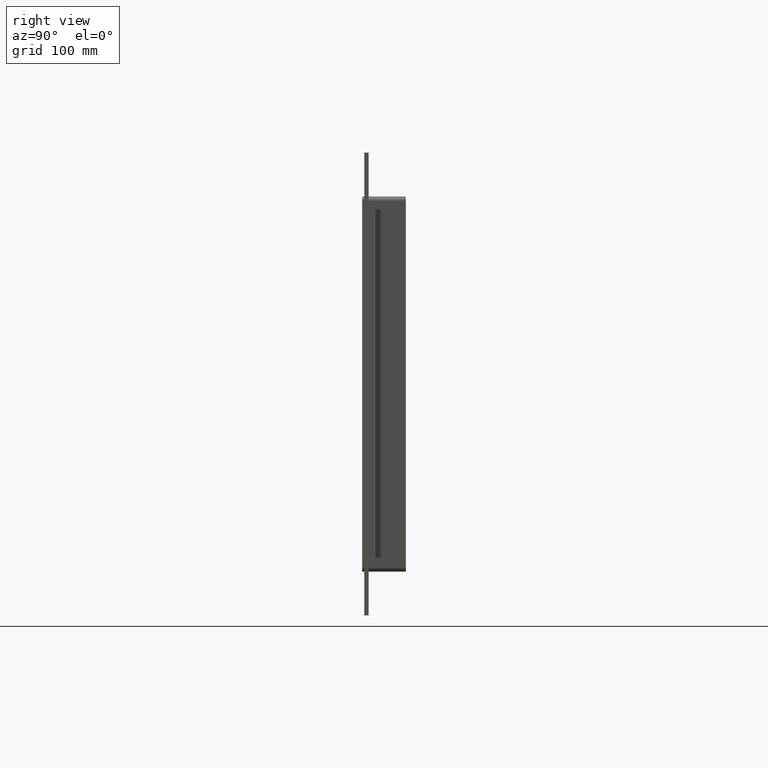
[diagram: clean part render]
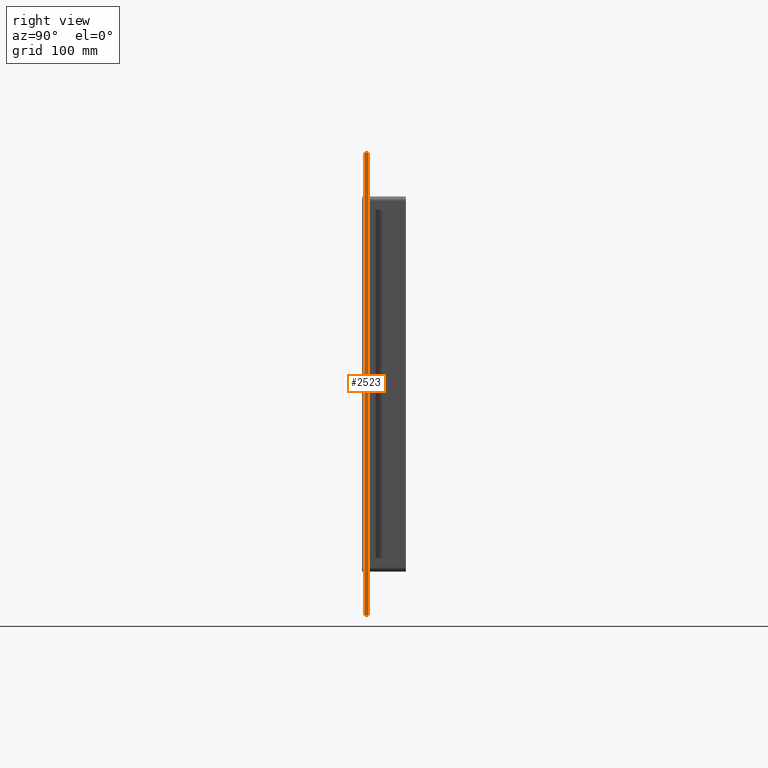
[diagram: same view with one face highlighted and labeled with its STEP entity id]
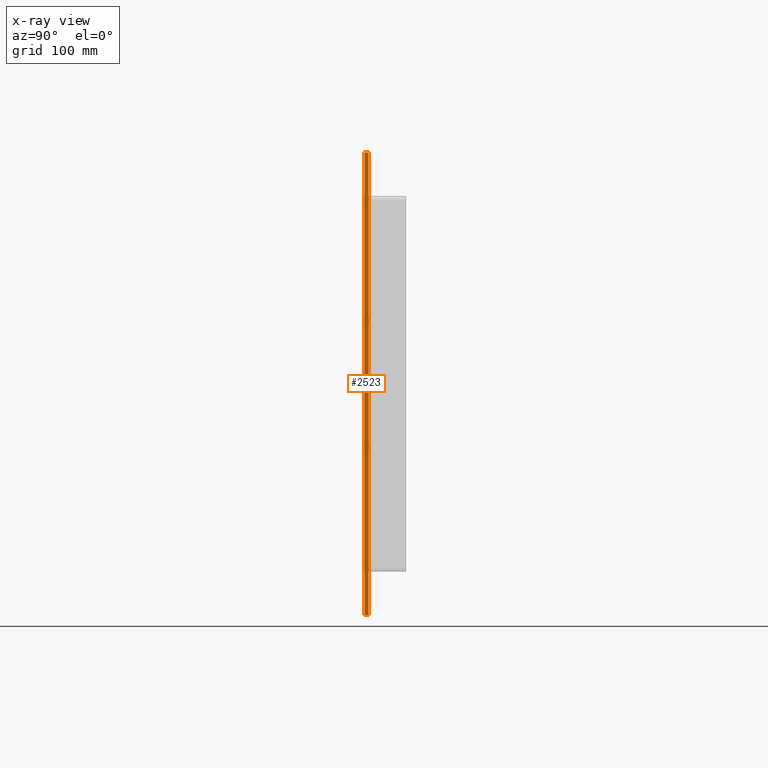
[diagram: x-ray of the same camera — body ghosted, the highlighted face saturated]
A machine part, right view. The second image highlights one B-rep face of the part: STEP entity #2523.
The next image is the same camera in x-ray: the body ghosted, the highlighted face saturated — about 0% of this face is hidden behind the body in this view.
In plain terms, the highlighted planar face has unit normal (1, 0, 0).
Its self-contained STEP definition (entity closure, byte-faithful):
#2255=CARTESIAN_POINT('',(387.25,6.000000000000001,317.25000000000011));
#2256=VERTEX_POINT('',#2255);
#2263=CARTESIAN_POINT('',(387.25,6.000000000000001,-317.25000000000011));
#2264=VERTEX_POINT('',#2263);
#2265=CARTESIAN_POINT('',(387.25,6.000000000000001,317.25000000000011));
#2266=DIRECTION('',(0.0,0.0,-1.0));
#2267=VECTOR('',#2266,634.50000000000023);
#2268=LINE('',#2265,#2267);
#2269=EDGE_CURVE('',#2256,#2264,#2268,.T.);
#2365=CARTESIAN_POINT('',(387.25,0.0,317.25000000000011));
#2366=VERTEX_POINT('',#2365);
#2381=CARTESIAN_POINT('',(387.25,0.0,-317.25000000000011));
#2382=VERTEX_POINT('',#2381);
#2389=CARTESIAN_POINT('',(387.25,0.0,317.25000000000011));
#2390=DIRECTION('',(0.0,0.0,-1.0));
#2391=VECTOR('',#2390,634.50000000000023);
#2392=LINE('',#2389,#2391);
#2393=EDGE_CURVE('',#2366,#2382,#2392,.T.);
#2498=CARTESIAN_POINT('',(387.25,0.0,-317.25000000000011));
#2499=DIRECTION('',(0.0,1.0,0.0));
#2500=VECTOR('',#2499,6.000000000000001);
#2501=LINE('',#2498,#2500);
#2502=EDGE_CURVE('',#2382,#2264,#2501,.T.);
#2507=CARTESIAN_POINT('',(387.25,0.0,317.25000000000011));
#2508=DIRECTION('',(1.0,0.0,0.0));
#2509=DIRECTION('',(0.0,0.0,-1.0));
#2510=AXIS2_PLACEMENT_3D('',#2507,#2508,#2509);
#2511=PLANE('',#2510);
#2512=ORIENTED_EDGE('',*,*,#2393,.T.);
#2513=ORIENTED_EDGE('',*,*,#2502,.T.);
#2514=ORIENTED_EDGE('',*,*,#2269,.F.);
#2515=CARTESIAN_POINT('',(387.25,0.0,317.25000000000011));
#2516=DIRECTION('',(0.0,1.0,0.0));
#2517=VECTOR('',#2516,6.000000000000001);
#2518=LINE('',#2515,#2517);
#2519=EDGE_CURVE('',#2366,#2256,#2518,.T.);
#2520=ORIENTED_EDGE('',*,*,#2519,.F.);
#2521=EDGE_LOOP('',(#2512,#2513,#2514,#2520));
#2522=FACE_OUTER_BOUND('',#2521,.T.);
#2523=ADVANCED_FACE('',(#2522),#2511,.T.);